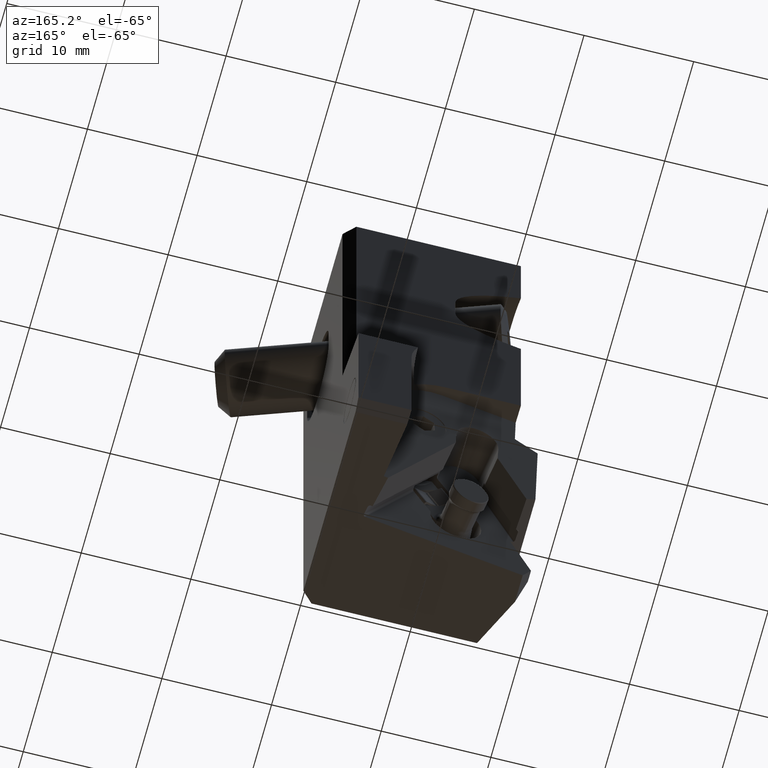
[diagram: clean part render]
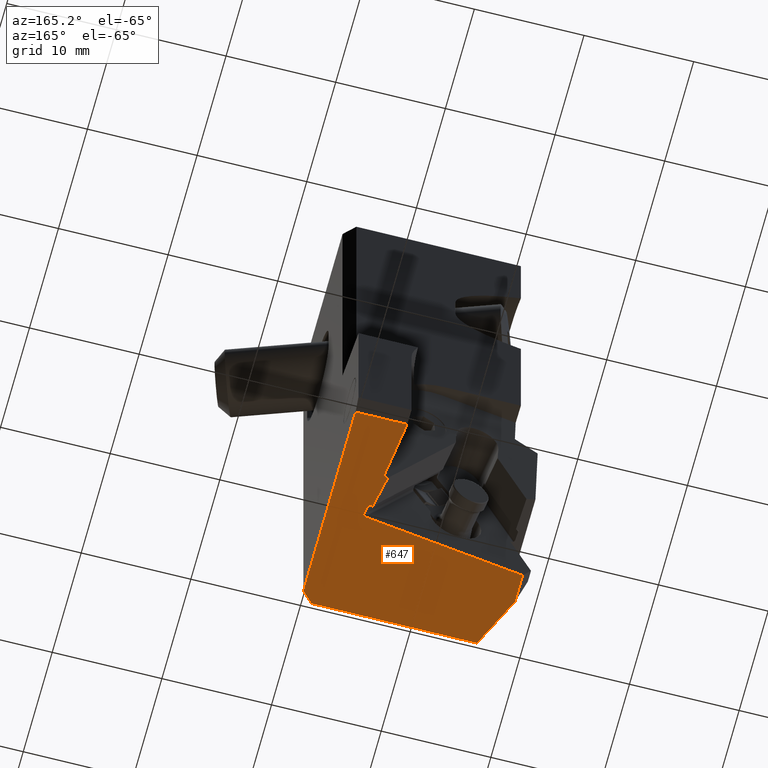
[diagram: same view with one face highlighted and labeled with its STEP entity id]
A machine part, auxiliary view. The second image highlights one B-rep face of the part: STEP entity #647.
In plain terms, the highlighted planar face has unit normal (0, 0, 1).
Its self-contained STEP definition (entity closure, byte-faithful):
#426=FACE_OUTER_BOUND('',#1060,.T.);
#647=ADVANCED_FACE('',(#426),#864,.F.);
#864=PLANE('',#4413);
#973=ELLIPSE('',#4410,0.232575758808228,0.2000000000069);
#974=ELLIPSE('',#4412,0.232575758925795,0.200000000108);
#1060=EDGE_LOOP('',(#1513,#1514,#1515,#1516,#1517,#1518,#1519,#1520,#1521,
#1522,#1523,#1524,#1525,#1526));
#1513=ORIENTED_EDGE('',*,*,#2972,.F.);
#1514=ORIENTED_EDGE('',*,*,#3007,.F.);
#1515=ORIENTED_EDGE('',*,*,#3005,.F.);
#1516=ORIENTED_EDGE('',*,*,#3008,.T.);
#1517=ORIENTED_EDGE('',*,*,#3009,.T.);
#1518=ORIENTED_EDGE('',*,*,#3010,.T.);
#1519=ORIENTED_EDGE('',*,*,#2945,.F.);
#1520=ORIENTED_EDGE('',*,*,#2932,.F.);
#1521=ORIENTED_EDGE('',*,*,#3011,.T.);
#1522=ORIENTED_EDGE('',*,*,#2922,.F.);
#1523=ORIENTED_EDGE('',*,*,#2866,.F.);
#1524=ORIENTED_EDGE('',*,*,#2859,.F.);
#1525=ORIENTED_EDGE('',*,*,#3012,.F.);
#1526=ORIENTED_EDGE('',*,*,#3013,.T.);
#2470=VERTEX_POINT('',#6076);
#2471=VERTEX_POINT('',#6078);
#2477=VERTEX_POINT('',#6092);
#2519=VERTEX_POINT('',#6267);
#2526=VERTEX_POINT('',#6285);
#2527=VERTEX_POINT('',#6287);
#2536=VERTEX_POINT('',#6313);
#2558=VERTEX_POINT('',#6366);
#2559=VERTEX_POINT('',#6368);
#2579=VERTEX_POINT('',#6429);
#2580=VERTEX_POINT('',#6431);
#2581=VERTEX_POINT('',#6437);
#2582=VERTEX_POINT('',#6439);
#2583=VERTEX_POINT('',#6443);
#2859=EDGE_CURVE('',#2470,#2471,#3463,.T.);
#2866=EDGE_CURVE('',#2471,#2477,#3467,.T.);
#2922=EDGE_CURVE('',#2477,#2519,#3501,.T.);
#2932=EDGE_CURVE('',#2526,#2527,#3508,.T.);
#2945=EDGE_CURVE('',#2527,#2536,#3516,.T.);
#2972=EDGE_CURVE('',#2558,#2559,#3536,.T.);
#3005=EDGE_CURVE('',#2579,#2580,#3560,.T.);
#3007=EDGE_CURVE('',#2580,#2558,#973,.T.);
#3008=EDGE_CURVE('',#2579,#2581,#974,.T.);
#3009=EDGE_CURVE('',#2581,#2582,#3562,.T.);
#3010=EDGE_CURVE('',#2582,#2536,#3563,.T.);
#3011=EDGE_CURVE('',#2526,#2519,#3564,.T.);
#3012=EDGE_CURVE('',#2583,#2470,#3565,.T.);
#3013=EDGE_CURVE('',#2583,#2559,#3566,.T.);
#3463=LINE('',#6077,#3825);
#3467=LINE('',#6091,#3829);
#3501=LINE('',#6266,#3863);
#3508=LINE('',#6286,#3870);
#3516=LINE('',#6312,#3878);
#3536=LINE('',#6367,#3898);
#3560=LINE('',#6430,#3922);
#3562=LINE('',#6438,#3924);
#3563=LINE('',#6440,#3925);
#3564=LINE('',#6441,#3926);
#3565=LINE('',#6442,#3927);
#3566=LINE('',#6444,#3928);
#3825=VECTOR('',#4818,1.);
#3829=VECTOR('',#4830,1.);
#3863=VECTOR('',#4928,1.);
#3870=VECTOR('',#4945,1.);
#3878=VECTOR('',#4971,1.);
#3898=VECTOR('',#5015,1.);
#3922=VECTOR('',#5075,1.);
#3924=VECTOR('',#5085,1.);
#3925=VECTOR('',#5086,1.);
#3926=VECTOR('',#5087,1.);
#3927=VECTOR('',#5088,1.);
#3928=VECTOR('',#5089,1.);
#4410=AXIS2_PLACEMENT_3D('',#6434,#5079,#5080);
#4412=AXIS2_PLACEMENT_3D('',#6436,#5083,#5084);
#4413=AXIS2_PLACEMENT_3D('',#6445,#5090,#5091);
#4818=DIRECTION('',(1.,3.592686550738E-14,0.));
#4830=DIRECTION('',(0.707106781186547,0.707106781186547,0.));
#4928=DIRECTION('',(0.,1.,0.));
#4945=DIRECTION('',(0.130526192220002,-0.991444861373817,-3.26149349936906E-14));
#4971=DIRECTION('',(-0.991444861373857,-0.130526192219694,1.27328563151495E-12));
#5015=DIRECTION('',(-0.991444861373817,-0.130526192220002,2.27441289885704E-14));
#5075=DIRECTION('',(0.185187358906592,-0.982703231958255,-2.43830456298089E-11));
#5079=DIRECTION('',(0.,0.,-1.));
#5080=DIRECTION('',(-0.999530536384632,0.0306383229738613,0.));
#5083=DIRECTION('',(0.,0.,1.));
#5084=DIRECTION('',(-0.999530536384632,0.0306383229738613,0.));
#5085=DIRECTION('',(-0.99144486133623,-0.130526192505504,2.59159730864408E-11));
#5086=DIRECTION('',(-0.198296447930991,0.980142091095955,9.68549375676356E-14));
#5087=DIRECTION('',(1.,0.,0.));
#5088=DIRECTION('',(0.422618261741206,-0.906307787036414,-5.70546773251009E-14));
#5089=DIRECTION('',(-3.499256296599E-13,1.,0.));
#5090=DIRECTION('',(0.,0.,1.));
#5091=DIRECTION('',(1.,0.,0.));
#6076=CARTESIAN_POINT('',(-16.0947468541,-5.422329252269E-13,-46.45333262775));
#6077=CARTESIAN_POINT('',(-16.0947468541,-5.422329252269E-13,-46.45333262775));
#6078=CARTESIAN_POINT('',(-1.,0.,-46.45333262775));
#6091=CARTESIAN_POINT('',(-1.,0.,-46.45333262775));
#6092=CARTESIAN_POINT('',(0.,1.,-46.45333262775));
#6266=CARTESIAN_POINT('',(0.,1.,-46.45333262775));
#6267=CARTESIAN_POINT('',(0.,19.,-46.45333262775));
#6285=CARTESIAN_POINT('',(-4.710904664736,19.,-46.45333262775));
#6286=CARTESIAN_POINT('',(-4.710904664736,19.,-46.45333262775));
#6287=CARTESIAN_POINT('',(-4.,13.60014296907,-46.45333262775));
#6312=CARTESIAN_POINT('',(-4.,13.60014296907,-46.45333262775));
#6313=CARTESIAN_POINT('',(-4.403883203034,13.54697073666,-46.45333262775));
#6366=CARTESIAN_POINT('',(-3.438025471701,9.35783383893657,-46.45333262775));
#6367=CARTESIAN_POINT('',(-3.438025471637,9.357833838945,-46.45333262775));
#6368=CARTESIAN_POINT('',(-18.30527729582,7.400523004031,-46.45333262775));
#6429=CARTESIAN_POINT('',(-3.39479780656233,10.3767395357716,-46.45333262775));
#6430=CARTESIAN_POINT('',(-3.394797806564,10.37673953577,-46.45333262775));
#6431=CARTESIAN_POINT('',(-3.24574599301505,9.58579084589016,-46.4533326277598));
#6434=CARTESIAN_POINT('',(-3.47528842516337,9.55557101140339,-46.45333262775));
#6436=CARTESIAN_POINT('',(-3.62434023873572,10.3465197012804,-46.45333262775));
#6437=CARTESIAN_POINT('',(-3.66160319202598,10.5442568737909,-46.45333262775));
#6438=CARTESIAN_POINT('',(-3.661603192024,10.54425687379,-46.45333262775));
#6439=CARTESIAN_POINT('',(-3.792895227202,10.52697194941,-46.45333262775));
#6440=CARTESIAN_POINT('',(-3.792895227202,10.52697194941,-46.45333262775));
#6441=CARTESIAN_POINT('',(-4.710904664736,19.,-46.45333262775));
#6442=CARTESIAN_POINT('',(-18.30527729582,4.740497830252,-46.45333262775));
#6443=CARTESIAN_POINT('',(-18.30527729582,4.740497830252,-46.45333262775));
#6444=CARTESIAN_POINT('',(-18.30527729582,4.740497830252,-46.45333262775));
#6445=CARTESIAN_POINT('',(-9.15263864791,9.5,-46.45333262775));